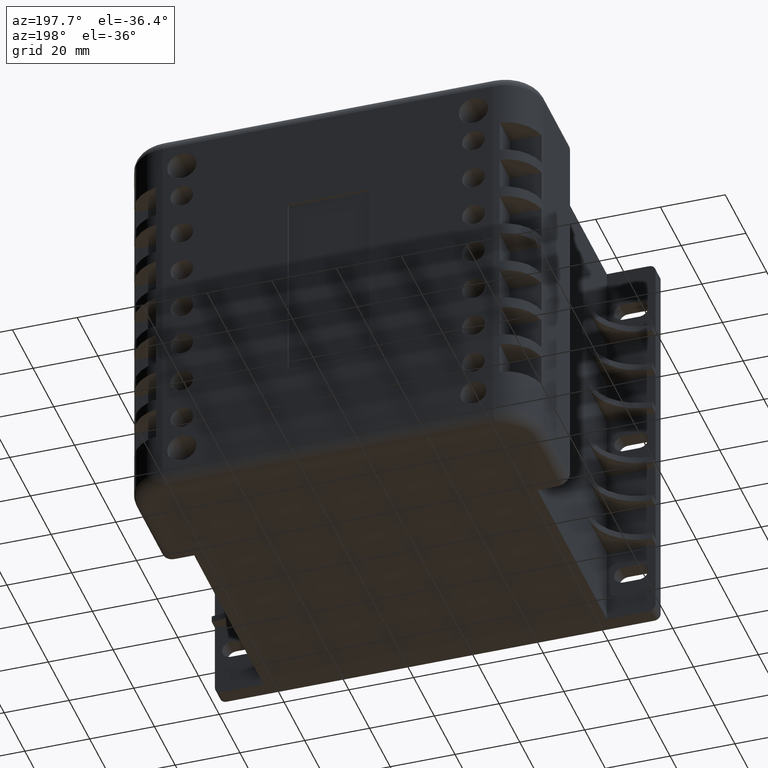
[diagram: clean part render]
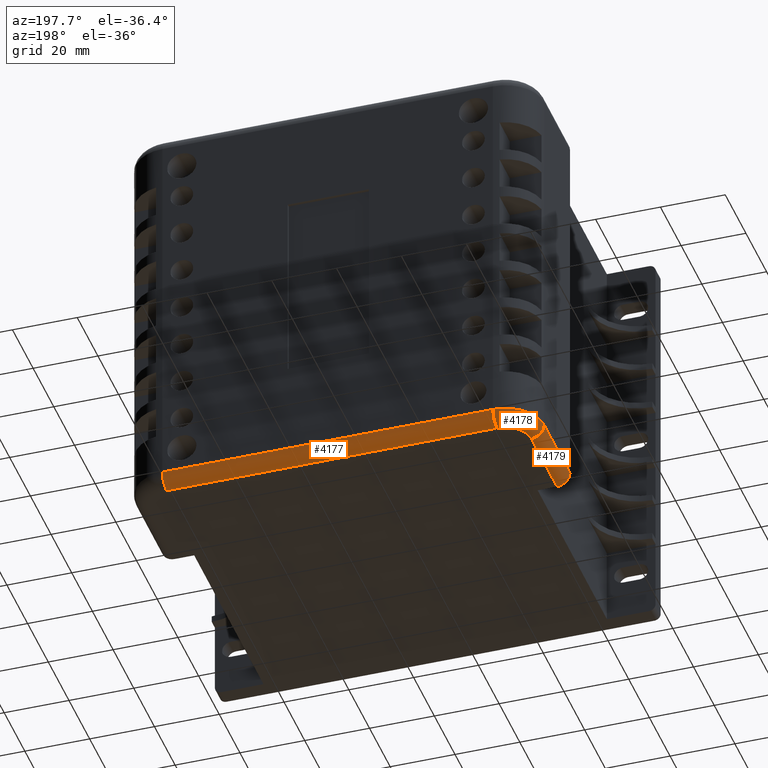
[diagram: same view with one multi-face feature highlighted, each face labeled with its STEP entity id]
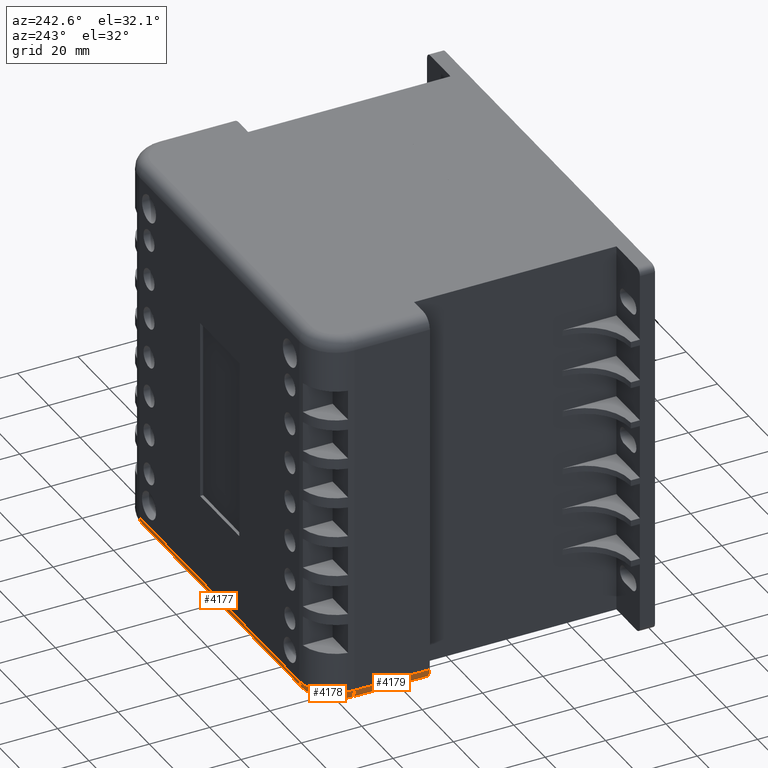
[diagram: same view with one multi-face feature highlighted, each face labeled with its STEP entity id]
A machine part, auxiliary view. The highlighted faces form ONE feature: a constant-radius fillet chain: 3 tangent blend faces with common blend radius 4 mm. The faces share edges in the B-rep.
A second angle (auxiliary view) of the same feature is appended — it is thin or edge-on in the first view.
Their STEP definitions:
[1] entity #4177 (Cylinder):
#95=CYLINDRICAL_SURFACE('',#4629,4.);
#201=CIRCLE('',#4627,4.);
#203=CIRCLE('',#4630,4.);
#464=FACE_OUTER_BOUND('',#723,.T.);
#723=EDGE_LOOP('',(#3222,#3223,#3224,#3225));
#1075=LINE('',#6571,#1467);
#1108=LINE('',#6737,#1500);
#1467=VECTOR('',#5382,10.);
#1500=VECTOR('',#5585,10.);
#1819=VERTEX_POINT('',#6568);
#1820=VERTEX_POINT('',#6570);
#1867=VERTEX_POINT('',#6731);
#1868=VERTEX_POINT('',#6735);
#2272=EDGE_CURVE('',#1820,#1819,#1075,.T.);
#2343=EDGE_CURVE('',#1820,#1867,#201,.T.);
#2345=EDGE_CURVE('',#1819,#1868,#203,.T.);
#2346=EDGE_CURVE('',#1868,#1867,#1108,.T.);
#3222=ORIENTED_EDGE('',*,*,#2345,.T.);
#3223=ORIENTED_EDGE('',*,*,#2346,.T.);
#3224=ORIENTED_EDGE('',*,*,#2343,.F.);
#3225=ORIENTED_EDGE('',*,*,#2272,.T.);
#4177=ADVANCED_FACE('',(#464),#95,.T.);
#4627=AXIS2_PLACEMENT_3D('',#6732,#5577,#5578);
#4629=AXIS2_PLACEMENT_3D('',#6734,#5581,#5582);
#4630=AXIS2_PLACEMENT_3D('',#6736,#5583,#5584);
#5382=DIRECTION('',(-1.,0.,0.));
#5577=DIRECTION('center_axis',(1.,0.,0.));
#5578=DIRECTION('ref_axis',(0.,0.,-1.));
#5581=DIRECTION('center_axis',(-1.,0.,0.));
#5582=DIRECTION('ref_axis',(0.,0.707106781186547,-0.707106781186548));
#5583=DIRECTION('center_axis',(1.,0.,0.));
#5584=DIRECTION('ref_axis',(0.,0.,-1.));
#5585=DIRECTION('',(1.,0.,0.));
#6568=CARTESIAN_POINT('',(-114.,33.,0.));
#6570=CARTESIAN_POINT('',(-12.,33.,0.));
#6571=CARTESIAN_POINT('',(-31.5,33.,0.));
#6731=CARTESIAN_POINT('',(-12.,37.,4.));
#6732=CARTESIAN_POINT('Origin',(-12.,33.,4.));
#6734=CARTESIAN_POINT('Origin',(-31.5,33.,4.));
#6735=CARTESIAN_POINT('',(-114.,37.,4.));
#6736=CARTESIAN_POINT('Origin',(-114.,33.,4.));
#6737=CARTESIAN_POINT('',(-31.5,37.,4.));
[2] entity #4178 (Torus):
#24=TOROIDAL_SURFACE('',#4631,8.,4.);
#162=CIRCLE('',#4545,8.);
#203=CIRCLE('',#4630,4.);
#204=CIRCLE('',#4632,4.00000000000002);
#205=CIRCLE('',#4633,12.);
#465=FACE_OUTER_BOUND('',#724,.T.);
#724=EDGE_LOOP('',(#3226,#3227,#3228,#3229));
#1818=VERTEX_POINT('',#6566);
#1819=VERTEX_POINT('',#6568);
#1868=VERTEX_POINT('',#6735);
#1869=VERTEX_POINT('',#6739);
#2271=EDGE_CURVE('',#1819,#1818,#162,.T.);
#2345=EDGE_CURVE('',#1819,#1868,#203,.T.);
#2347=EDGE_CURVE('',#1818,#1869,#204,.T.);
#2348=EDGE_CURVE('',#1869,#1868,#205,.T.);
#3226=ORIENTED_EDGE('',*,*,#2347,.T.);
#3227=ORIENTED_EDGE('',*,*,#2348,.T.);
#3228=ORIENTED_EDGE('',*,*,#2345,.F.);
#3229=ORIENTED_EDGE('',*,*,#2271,.T.);
#4178=ADVANCED_FACE('',(#465),#24,.T.);
#4545=AXIS2_PLACEMENT_3D('',#6569,#5380,#5381);
#4630=AXIS2_PLACEMENT_3D('',#6736,#5583,#5584);
#4631=AXIS2_PLACEMENT_3D('',#6738,#5586,#5587);
#4632=AXIS2_PLACEMENT_3D('',#6740,#5588,#5589);
#4633=AXIS2_PLACEMENT_3D('',#6741,#5590,#5591);
#5380=DIRECTION('center_axis',(0.,0.,1.));
#5381=DIRECTION('ref_axis',(-0.707106781186548,0.707106781186547,0.));
#5583=DIRECTION('center_axis',(1.,0.,0.));
#5584=DIRECTION('ref_axis',(0.,0.,-1.));
#5586=DIRECTION('center_axis',(0.,0.,1.));
#5587=DIRECTION('ref_axis',(1.,0.,0.));
#5588=DIRECTION('center_axis',(0.,1.,0.));
#5589=DIRECTION('ref_axis',(0.,0.,-1.));
#5590=DIRECTION('center_axis',(0.,0.,-1.));
#5591=DIRECTION('ref_axis',(-0.707106781186548,0.707106781186547,0.));
#6566=CARTESIAN_POINT('',(-122.,25.,0.));
#6568=CARTESIAN_POINT('',(-114.,33.,0.));
#6569=CARTESIAN_POINT('Origin',(-114.,25.,0.));
#6735=CARTESIAN_POINT('',(-114.,37.,4.));
#6736=CARTESIAN_POINT('Origin',(-114.,33.,4.));
#6738=CARTESIAN_POINT('Origin',(-114.,25.,4.00000000000002));
#6739=CARTESIAN_POINT('',(-126.,25.,4.00000000000002));
#6740=CARTESIAN_POINT('Origin',(-122.,25.,4.00000000000002));
#6741=CARTESIAN_POINT('Origin',(-114.,25.,4.00000000000002));
[3] entity #4179 (Cylinder):
#96=CYLINDRICAL_SURFACE('',#4634,4.);
#159=CIRCLE('',#4540,4.);
#204=CIRCLE('',#4632,4.00000000000002);
#466=FACE_OUTER_BOUND('',#725,.T.);
#725=EDGE_LOOP('',(#3230,#3231,#3232,#3233));
#1074=LINE('',#6567,#1466);
#1109=LINE('',#6743,#1501);
#1466=VECTOR('',#5379,10.);
#1501=VECTOR('',#5594,10.);
#1812=VERTEX_POINT('',#6550);
#1813=VERTEX_POINT('',#6552);
#1818=VERTEX_POINT('',#6566);
#1869=VERTEX_POINT('',#6739);
#2263=EDGE_CURVE('',#1813,#1812,#159,.T.);
#2270=EDGE_CURVE('',#1818,#1813,#1074,.T.);
#2347=EDGE_CURVE('',#1818,#1869,#204,.T.);
#2349=EDGE_CURVE('',#1812,#1869,#1109,.T.);
#3230=ORIENTED_EDGE('',*,*,#2263,.T.);
#3231=ORIENTED_EDGE('',*,*,#2349,.T.);
#3232=ORIENTED_EDGE('',*,*,#2347,.F.);
#3233=ORIENTED_EDGE('',*,*,#2270,.T.);
#4179=ADVANCED_FACE('',(#466),#96,.T.);
#4540=AXIS2_PLACEMENT_3D('',#6553,#5365,#5366);
#4632=AXIS2_PLACEMENT_3D('',#6740,#5588,#5589);
#4634=AXIS2_PLACEMENT_3D('',#6742,#5592,#5593);
#5365=DIRECTION('center_axis',(0.,1.,0.));
#5366=DIRECTION('ref_axis',(-0.707106781186549,0.,-0.707106781186546));
#5379=DIRECTION('',(0.,-1.,0.));
#5588=DIRECTION('center_axis',(0.,1.,0.));
#5589=DIRECTION('ref_axis',(0.,0.,-1.));
#5592=DIRECTION('center_axis',(0.,1.,0.));
#5593=DIRECTION('ref_axis',(-0.707106781186549,0.,-0.707106781186546));
#5594=DIRECTION('',(0.,1.,0.));
#6550=CARTESIAN_POINT('',(-126.,0.,4.));
#6552=CARTESIAN_POINT('',(-122.,0.,0.));
#6553=CARTESIAN_POINT('Origin',(-122.,0.,4.));
#6566=CARTESIAN_POINT('',(-122.,25.,0.));
#6567=CARTESIAN_POINT('',(-122.,0.,0.));
#6739=CARTESIAN_POINT('',(-126.,25.,4.00000000000002));
#6740=CARTESIAN_POINT('Origin',(-122.,25.,4.00000000000002));
#6742=CARTESIAN_POINT('Origin',(-122.,0.,4.));
#6743=CARTESIAN_POINT('',(-126.,0.,4.));